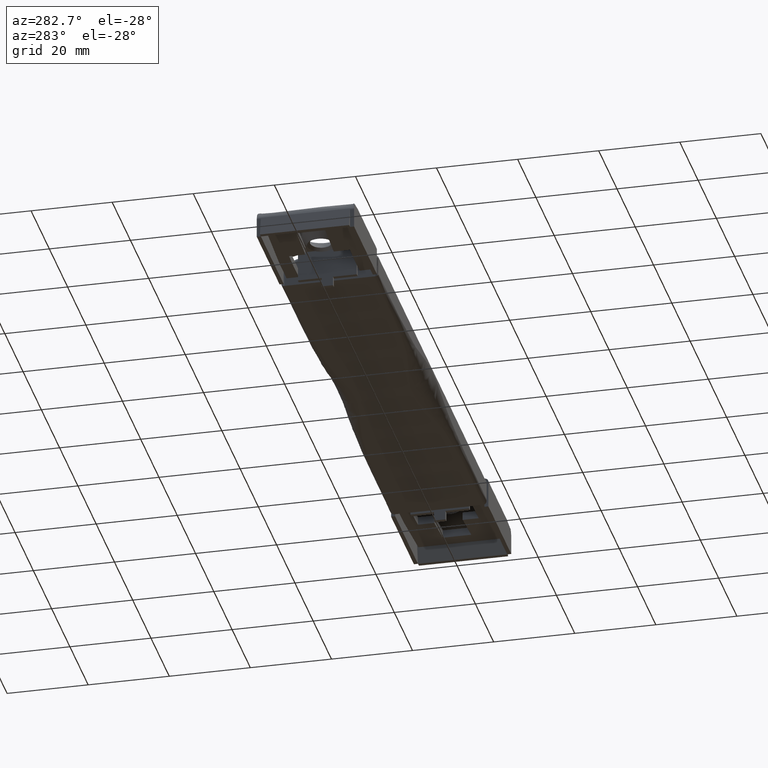
[diagram: clean part render]
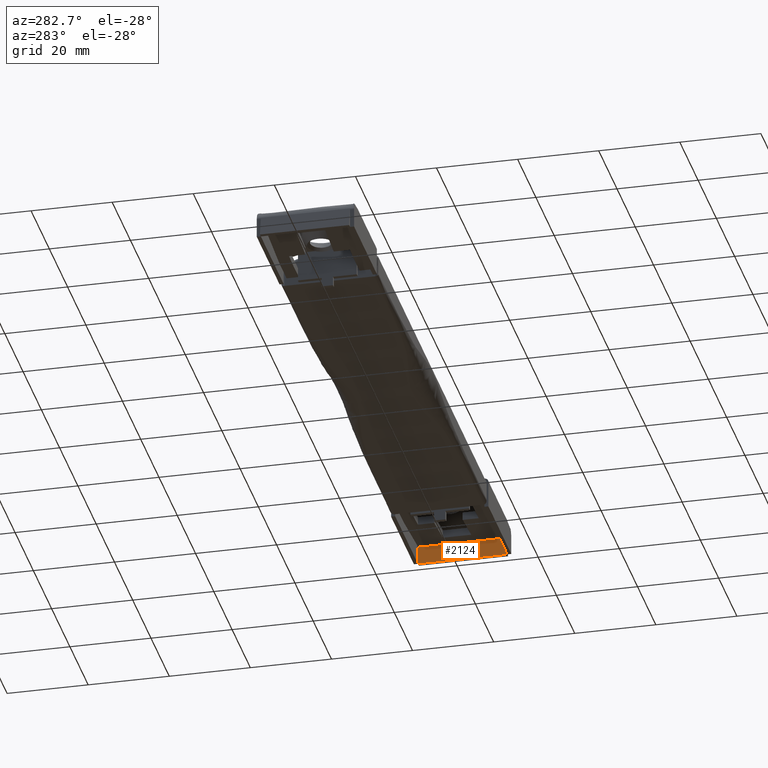
[diagram: same view with one face highlighted and labeled with its STEP entity id]
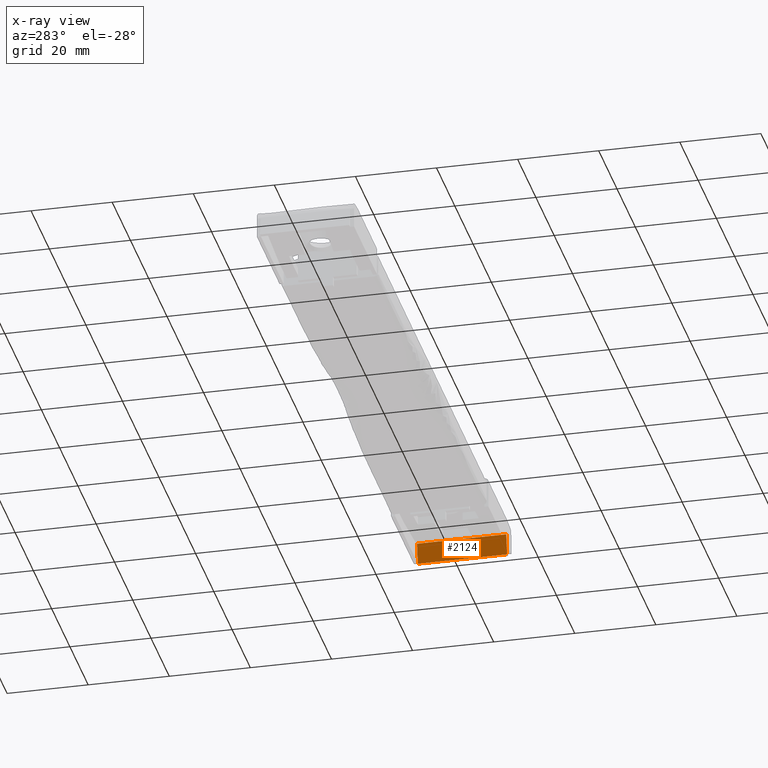
[diagram: x-ray of the same camera — body ghosted, the highlighted face saturated]
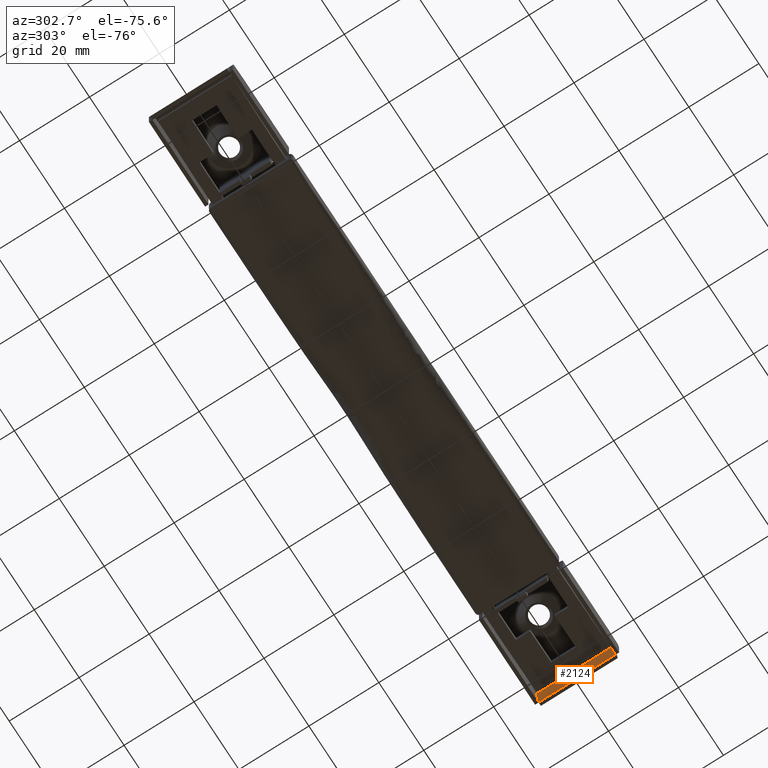
[diagram: same view with one face highlighted and labeled with its STEP entity id]
A machine part, auxiliary view. The second image highlights one B-rep face of the part: STEP entity #2124.
The next image is the same camera in x-ray: the body ghosted, the highlighted face saturated — about 0% of this face is hidden behind the body in this view.
A second angle (auxiliary view) of the same face is appended — the face is thin or edge-on in the first view.
In plain terms, the highlighted face is a freeform B-spline surface patch.
Its self-contained STEP definition (entity closure, byte-faithful):
#1968=CARTESIAN_POINT('',(84.957860027806390,11.0,4.907812611302820));
#1969=VERTEX_POINT('',#1968);
#1983=CARTESIAN_POINT('',(84.957860027806390,-11.0,4.907812611302820));
#1984=VERTEX_POINT('',#1983);
#1985=CARTESIAN_POINT('',(84.957860027806390,11.0,4.907812611302820));
#1986=CARTESIAN_POINT('',(84.957860027806390,-11.0,4.907812611302820));
#1987=QUASI_UNIFORM_CURVE('',1,(#1985,#1986),.UNSPECIFIED.,.F.,.U.);
#1988=EDGE_CURVE('',#1969,#1984,#1987,.T.);
#2097=CARTESIAN_POINT('',(84.906874168944327,-12.098899957359730,5.152957225267532));
#2098=CARTESIAN_POINT('',(86.029586481261390,-12.098899957359730,-0.245144964998815));
#2099=CARTESIAN_POINT('',(84.906874168944327,12.098900547445711,5.152957225267532));
#2100=CARTESIAN_POINT('',(86.029586481261390,12.098900547445711,-0.245144964998815));
#2101=B_SPLINE_SURFACE_WITH_KNOTS('',1,1,((#2097,#2099),(#2098,#2100)),.UNSPECIFIED.,.F.,.F.,.U.,(2,2),(2,2),(0.0,5.513618611473473),(0.0,24.197800504805439),.UNSPECIFIED.);
#2102=CARTESIAN_POINT('',(85.978600549390208,11.0,0.0));
#2103=VERTEX_POINT('',#2102);
#2104=CARTESIAN_POINT('',(85.978600549390208,11.0,0.0));
#2105=CARTESIAN_POINT('',(84.957860027806390,11.0,4.907812611302820));
#2106=QUASI_UNIFORM_CURVE('',1,(#2104,#2105),.UNSPECIFIED.,.F.,.U.);
#2107=EDGE_CURVE('',#2103,#1969,#2106,.T.);
#2108=ORIENTED_EDGE('',*,*,#2107,.F.);
#2109=CARTESIAN_POINT('',(85.978600549390208,-11.0,0.0));
#2110=VERTEX_POINT('',#2109);
#2111=CARTESIAN_POINT('',(85.978600549390208,11.0,0.0));
#2112=CARTESIAN_POINT('',(85.978600549390208,-11.0,0.0));
#2113=QUASI_UNIFORM_CURVE('',1,(#2111,#2112),.UNSPECIFIED.,.F.,.U.);
#2114=EDGE_CURVE('',#2103,#2110,#2113,.T.);
#2115=ORIENTED_EDGE('',*,*,#2114,.T.);
#2116=CARTESIAN_POINT('',(85.978600549390208,-11.0,0.0));
#2117=CARTESIAN_POINT('',(84.957860027806390,-11.0,4.907812611302820));
#2118=QUASI_UNIFORM_CURVE('',1,(#2116,#2117),.UNSPECIFIED.,.F.,.U.);
#2119=EDGE_CURVE('',#2110,#1984,#2118,.T.);
#2120=ORIENTED_EDGE('',*,*,#2119,.T.);
#2121=ORIENTED_EDGE('',*,*,#1988,.F.);
#2122=EDGE_LOOP('',(#2108,#2115,#2120,#2121));
#2123=FACE_OUTER_BOUND('',#2122,.T.);
#2124=ADVANCED_FACE('',(#2123),#2101,.F.);